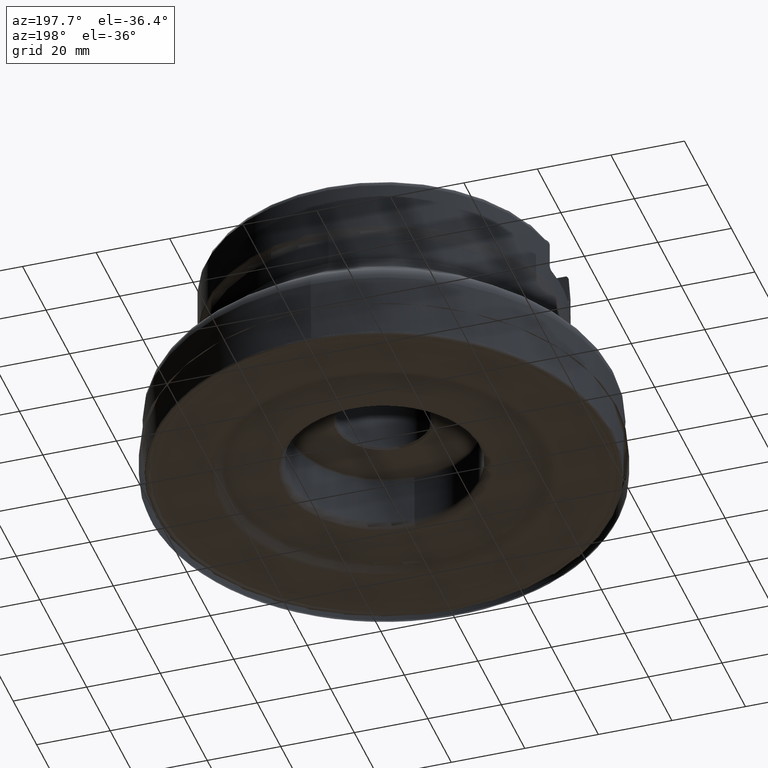
[diagram: clean part render]
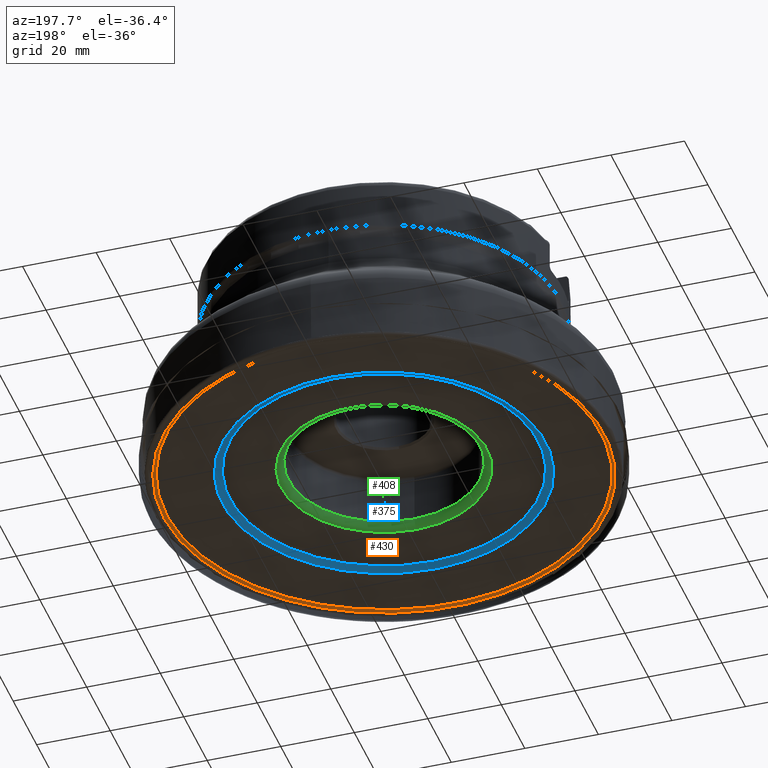
[diagram: same view with three faces highlighted in distinct colors, each labeled with its STEP entity id]
A machine part, auxiliary view with three faces highlighted in distinct colors.
Their STEP definitions:

[orange] entity #430 — the highlighted face is a SurfaceOfRevolution surface.
#125=SURFACE_OF_REVOLUTION('',#1188,#149);
#149=AXIS1_PLACEMENT('',#2448,#1599);
#262=FACE_BOUND('',#590,.T.);
#263=FACE_BOUND('',#591,.T.);
#430=ADVANCED_FACE('',(#262,#263),#125,.F.);
#590=EDGE_LOOP('',(#895));
#591=EDGE_LOOP('',(#896));
#664=CIRCLE('',#1311,59.9321872957041);
#665=CIRCLE('',#1312,55.3454661846658);
#895=ORIENTED_EDGE('',*,*,#1118,.T.);
#896=ORIENTED_EDGE('',*,*,#1119,.F.);
#999=VERTEX_POINT('',#2433);
#1000=VERTEX_POINT('',#2441);
#1118=EDGE_CURVE('',#999,#999,#664,.T.);
#1119=EDGE_CURVE('',#1000,#1000,#665,.T.);
#1188=B_SPLINE_CURVE_WITH_KNOTS('',5,(#2442,#2443,#2444,#2445,#2446,#2447),
 .UNSPECIFIED.,.F.,.F.,(6,6),(0.,1.),.UNSPECIFIED.);
#1311=AXIS2_PLACEMENT_3D('',#2432,#1594,#1595);
#1312=AXIS2_PLACEMENT_3D('',#2440,#1597,#1598);
#1594=DIRECTION('',(0.,0.,1.));
#1595=DIRECTION('',(1.,0.,0.));
#1597=DIRECTION('',(0.,0.,1.));
#1598=DIRECTION('',(1.,0.,0.));
#1599=DIRECTION('',(0.,0.,1.));
#2432=CARTESIAN_POINT('',(0.,0.,0.569826481496821));
#2433=CARTESIAN_POINT('',(59.9321872957041,0.,0.569826481496821));
#2440=CARTESIAN_POINT('',(0.,0.,3.39548763052598));
#2441=CARTESIAN_POINT('',(55.3454661846658,0.,3.39548763052598));
#2442=CARTESIAN_POINT('',(55.0131247819921,-6.05613161266406,3.39548764757));
#2443=CARTESIAN_POINT('',(55.9261115548835,-6.06264885121272,2.81575196666445));
#2444=CARTESIAN_POINT('',(56.8437297453755,-6.06787200825192,2.24329483815354));
#2445=CARTESIAN_POINT('',(57.7658724065609,-6.07180824378264,1.67812450467644));
#2446=CARTESIAN_POINT('',(58.6924561316423,-6.07445916883023,1.1202782899663));
#2447=CARTESIAN_POINT('',(59.6234138120256,-6.07582088670372,0.569826481496821));
#2448=CARTESIAN_POINT('',(0.,0.,0.));

[blue] entity #375 — the highlighted conical surface has half-angle 65 deg.
#180=FACE_BOUND('',#494,.T.);
#181=FACE_BOUND('',#495,.T.);
#280=CONICAL_SURFACE('',#1236,45.,65.);
#375=ADVANCED_FACE('',(#180,#181),#280,.F.);
#494=EDGE_LOOP('',(#734));
#495=EDGE_LOOP('',(#735));
#625=CIRCLE('',#1234,41.9300548465206);
#626=CIRCLE('',#1235,43.9953820045112);
#734=ORIENTED_EDGE('',*,*,#1059,.T.);
#735=ORIENTED_EDGE('',*,*,#1060,.T.);
#952=VERTEX_POINT('',#2099);
#953=VERTEX_POINT('',#2101);
#1059=EDGE_CURVE('',#952,#952,#625,.T.);
#1060=EDGE_CURVE('',#953,#953,#626,.T.);
#1234=AXIS2_PLACEMENT_3D('',#2098,#1410,#1411);
#1235=AXIS2_PLACEMENT_3D('',#2100,#1412,#1413);
#1236=AXIS2_PLACEMENT_3D('',#2102,#1414,#1415);
#1410=DIRECTION('',(0.,1.17145536458252E-15,1.));
#1411=DIRECTION('',(0.,1.,-1.16875445013665E-15));
#1412=DIRECTION('',(0.,-1.17145536458252E-15,-1.));
#1413=DIRECTION('',(0.,-1.,1.17303273795914E-15));
#1414=DIRECTION('',(0.,-1.17145536458252E-15,-1.));
#1415=DIRECTION('',(0.,1.,-1.17347987544072E-15));
#2098=CARTESIAN_POINT('',(0.,2.96558486626995E-15,2.53153893518325));
#2099=CARTESIAN_POINT('',(0.,41.9300548465206,2.5315389351832));
#2100=CARTESIAN_POINT('',(0.,1.83738212851841E-15,1.56846106481676));
#2101=CARTESIAN_POINT('',(0.,-43.9953820045112,1.56846106481681));
#2102=CARTESIAN_POINT('',(0.,1.28860090104078E-15,1.10000000000001));

[green] entity #408 — the highlighted toroidal blend (fillet) surface has major radius 28 mm and minor (blend) radius 2 mm.
#222=FACE_BOUND('',#548,.T.);
#223=FACE_BOUND('',#549,.T.);
#408=ADVANCED_FACE('',(#222,#223),#449,.T.);
#449=TOROIDAL_SURFACE('',#1289,28.,2.);
#548=EDGE_LOOP('',(#847));
#549=EDGE_LOOP('',(#848));
#628=CIRCLE('',#1238,28.);
#632=CIRCLE('',#1250,26.);
#847=ORIENTED_EDGE('',*,*,#1078,.F.);
#848=ORIENTED_EDGE('',*,*,#1062,.F.);
#955=VERTEX_POINT('',#2106);
#965=VERTEX_POINT('',#2206);
#1062=EDGE_CURVE('',#955,#955,#628,.T.);
#1078=EDGE_CURVE('',#965,#965,#632,.T.);
#1238=AXIS2_PLACEMENT_3D('',#2105,#1418,#1419);
#1250=AXIS2_PLACEMENT_3D('',#2205,#1450,#1451);
#1289=AXIS2_PLACEMENT_3D('',#2293,#1532,#1533);
#1418=DIRECTION('',(0.,1.17145536458252E-15,1.));
#1419=DIRECTION('',(0.,-1.,1.17713378726998E-15));
#1450=DIRECTION('',(0.,-1.17145536458252E-15,-1.));
#1451=DIRECTION('',(0.,-1.,1.16760233959977E-15));
#1532=DIRECTION('',(0.,1.17145536458252E-15,1.));
#1533=DIRECTION('',(0.,-1.,1.18539437525082E-15));
#2105=CARTESIAN_POINT('',(2.23659716418792E-15,5.45725638684159E-15,3.));
#2106=CARTESIAN_POINT('',(2.23659716418792E-15,-28.,3.00000000000003));
#2205=CARTESIAN_POINT('',(2.23659716418792E-15,7.80016711600664E-15,5.));
#2206=CARTESIAN_POINT('',(2.23659716418792E-15,-26.,5.00000000000003));
#2293=CARTESIAN_POINT('',(2.23659716418792E-15,7.80016711600664E-15,5.));